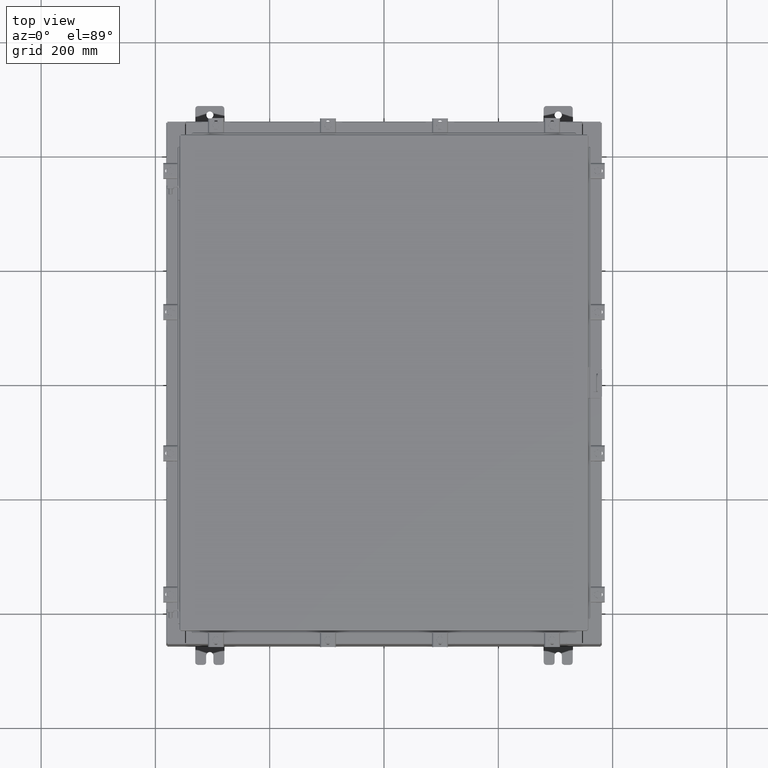
[diagram: clean part render]
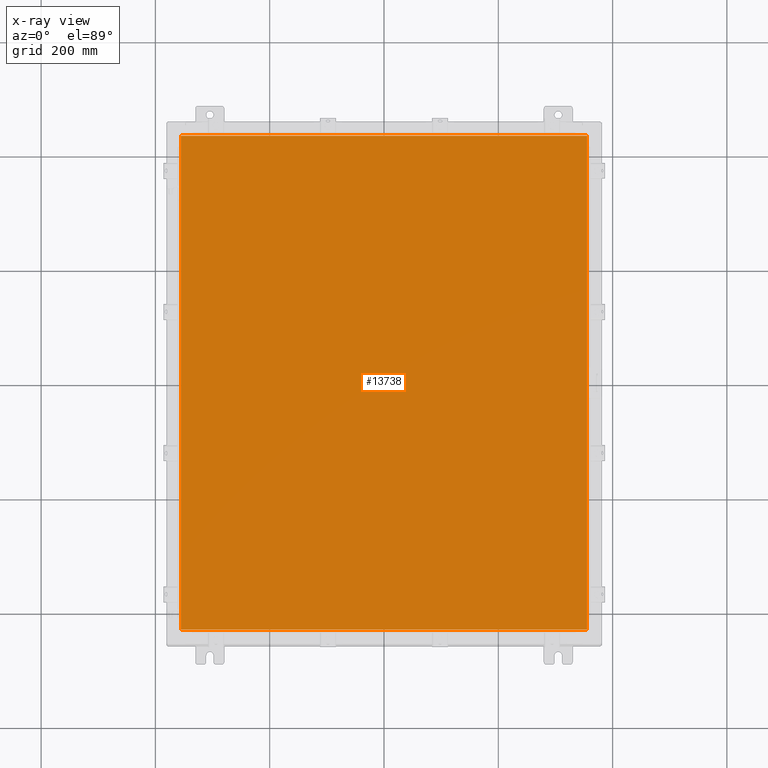
[diagram: x-ray — body ghosted, one internal face saturated and labeled with its STEP entity id]
A machine part, top view, then the same camera in x-ray: the body is ghosted and one INTERNAL B-rep face — a face not visible from any outside direction — is saturated and labeled: STEP entity #13738.
In plain terms, the highlighted planar face has unit normal (0, 0, -1).
Its self-contained STEP definition (entity closure, byte-faithful):
#288 = CARTESIAN_POINT ( 'NONE',  ( -13.99030000000000000, -17.00630000000000300, -0.07470000000000000300 ) ) ;
#2810 = EDGE_CURVE ( 'NONE', #22656, #19155, #9141, .T. ) ;
#3897 = CARTESIAN_POINT ( 'NONE',  ( -13.99030000000000000, 17.00630000000000000, -0.07470000000000019700 ) ) ;
#4106 = VECTOR ( 'NONE', #6985, 39.37007874015748100 ) ;
#6985 = DIRECTION ( 'NONE',  ( 0.0000000000000000000, 1.000000000000000000, 0.0000000000000000000 ) ) ;
#7330 = VERTEX_POINT ( 'NONE', #9474 ) ;
#7709 = FACE_OUTER_BOUND ( 'NONE', #11628, .T. ) ;
#7836 = ORIENTED_EDGE ( 'NONE', *, *, #20491, .F. ) ;
#7877 = CARTESIAN_POINT ( 'NONE',  ( 13.99029999999999600, 17.00629999999999600, -0.07469999999999910000 ) ) ;
#7969 = DIRECTION ( 'NONE',  ( -1.000000000000000000, 0.0000000000000000000, -0.0000000000000000000 ) ) ;
#8045 = EDGE_CURVE ( 'NONE', #19155, #7330, #11706, .T. ) ;
#9070 = DIRECTION ( 'NONE',  ( 1.000000000000000000, -0.0000000000000000000, -0.0000000000000000000 ) ) ;
#9141 = LINE ( 'NONE', #19144, #4106 ) ;
#9212 = VECTOR ( 'NONE', #15247, 39.37007874015748100 ) ;
#9474 = CARTESIAN_POINT ( 'NONE',  ( -13.99030000000000000, 17.00629999999999600, -0.07470000000000000300 ) ) ;
#9751 = EDGE_CURVE ( 'NONE', #15875, #22656, #14246, .T. ) ;
#9781 = CARTESIAN_POINT ( 'NONE',  ( 0.0000000000000000000, 0.0000000000000000000, -0.07470000000000000300 ) ) ;
#10234 = ORIENTED_EDGE ( 'NONE', *, *, #9751, .F. ) ;
#11628 = EDGE_LOOP ( 'NONE', ( #22413, #10234, #7836, #19414 ) ) ;
#11706 = LINE ( 'NONE', #7877, #16666 ) ;
#13592 = PLANE ( 'NONE',  #15304 ) ;
#13738 = ADVANCED_FACE ( 'NONE', ( #7709 ), #13592, .T. ) ;
#14246 = LINE ( 'NONE', #20367, #24261 ) ;
#15247 = DIRECTION ( 'NONE',  ( 0.0000000000000000000, -1.000000000000000000, 0.0000000000000000000 ) ) ;
#15304 = AXIS2_PLACEMENT_3D ( 'NONE', #9781, #19263, #7969 ) ;
#15875 = VERTEX_POINT ( 'NONE', #288 ) ;
#16666 = VECTOR ( 'NONE', #21034, 39.37007874015748100 ) ;
#18815 = CARTESIAN_POINT ( 'NONE',  ( 13.99029999999999800, 17.00629999999999600, -0.07470000000000000300 ) ) ;
#19144 = CARTESIAN_POINT ( 'NONE',  ( 13.99029999999999800, -17.00630000000000700, -0.07470000000000019700 ) ) ;
#19155 = VERTEX_POINT ( 'NONE', #18815 ) ;
#19263 = DIRECTION ( 'NONE',  ( 0.0000000000000000000, 0.0000000000000000000, -1.000000000000000000 ) ) ;
#19414 = ORIENTED_EDGE ( 'NONE', *, *, #8045, .F. ) ;
#20367 = CARTESIAN_POINT ( 'NONE',  ( -13.99029999999999800, -17.00630000000000300, -0.07470000000000019700 ) ) ;
#20491 = EDGE_CURVE ( 'NONE', #7330, #15875, #23644, .T. ) ;
#21034 = DIRECTION ( 'NONE',  ( -1.000000000000000000, -0.0000000000000000000, -0.0000000000000000000 ) ) ;
#22172 = CARTESIAN_POINT ( 'NONE',  ( 13.99029999999999800, -17.00630000000000300, -0.07470000000000000300 ) ) ;
#22413 = ORIENTED_EDGE ( 'NONE', *, *, #2810, .F. ) ;
#22656 = VERTEX_POINT ( 'NONE', #22172 ) ;
#23644 = LINE ( 'NONE', #3897, #9212 ) ;
#24261 = VECTOR ( 'NONE', #9070, 39.37007874015748100 ) ;